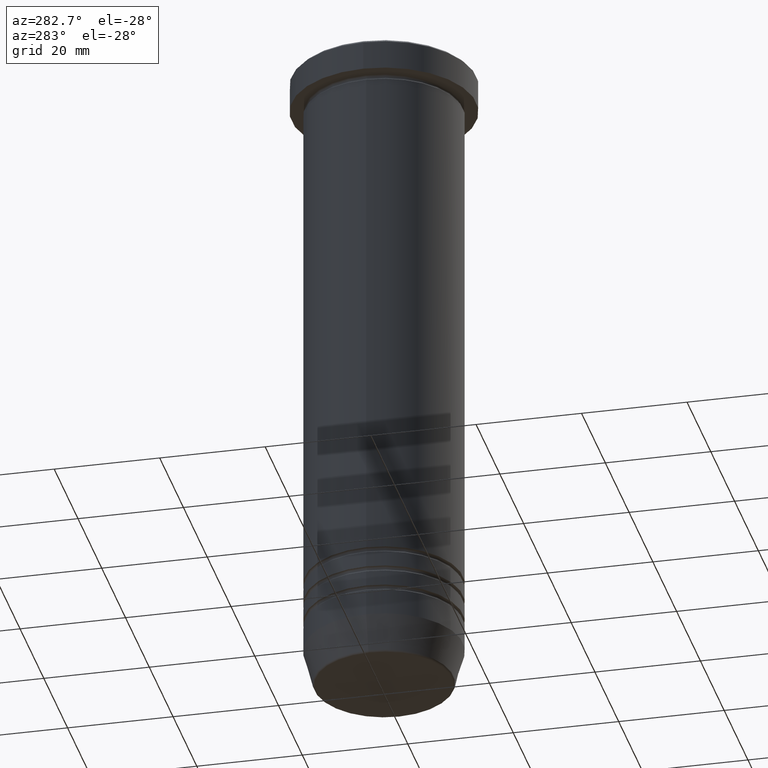
[diagram: clean part render]
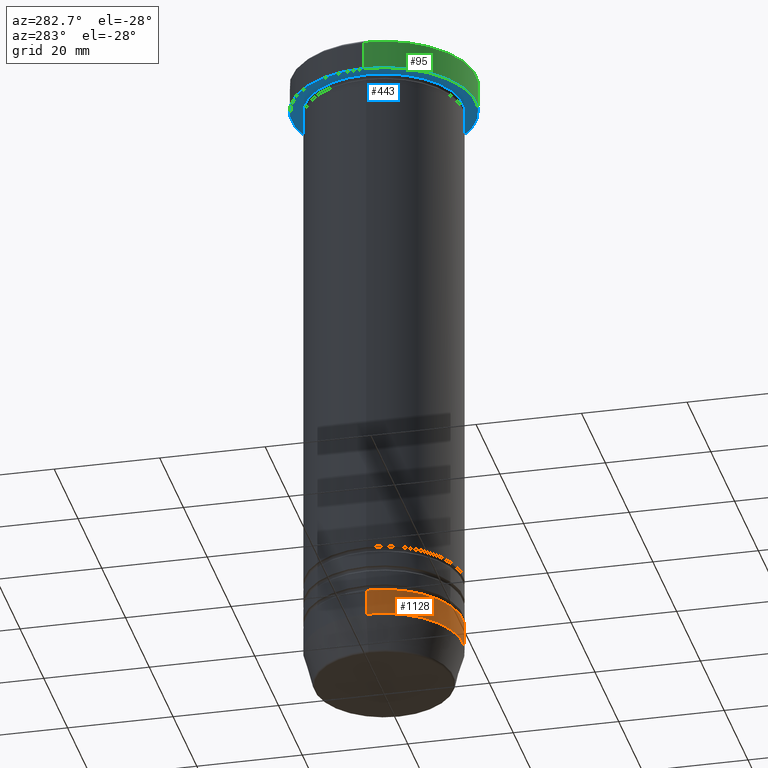
[diagram: same view with three faces highlighted in distinct colors, each labeled with its STEP entity id]
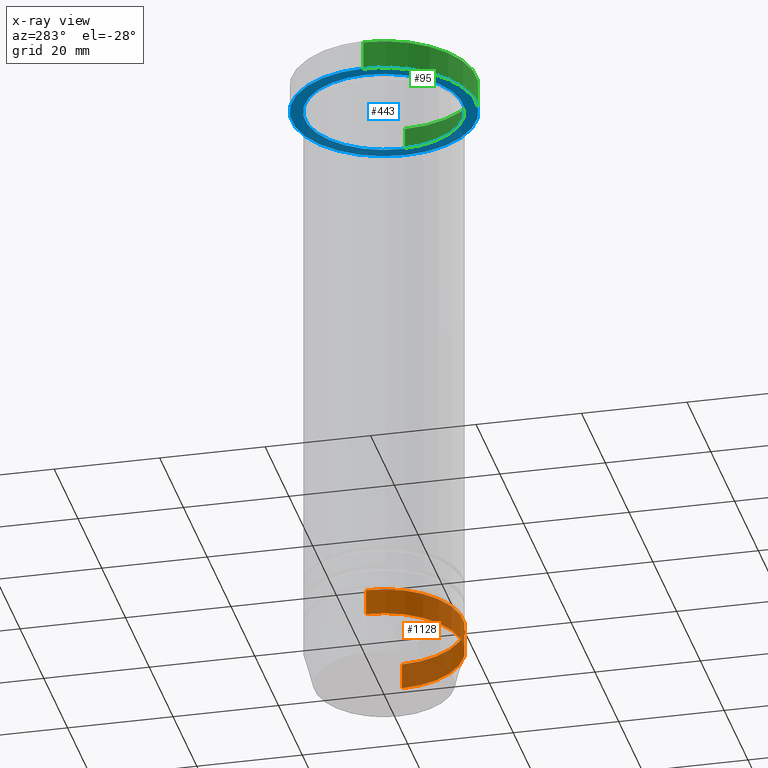
[diagram: x-ray of the same camera — body ghosted, the three highlighted faces saturated]
A machine part, auxiliary view with three faces highlighted in distinct colors.
The next image is the same camera in x-ray (body ghosted, the three faces saturated) — at least one of them is partly hidden behind the body in this view.
Their STEP definitions:

[orange] entity #1128 — the highlighted cylindrical surface (partial cylindrical patch) has radius 15 mm, axis along (-0, -0, 1).
#85 = AXIS2_PLACEMENT_3D ( 'NONE', #404, #417, #312 ) ;
#137 = CIRCLE ( 'NONE', #778, 14.99999999999999822 ) ;
#171 = ORIENTED_EDGE ( 'NONE', *, *, #966, .T. ) ;
#183 = LINE ( 'NONE', #361, #486 ) ;
#189 = CYLINDRICAL_SURFACE ( 'NONE', #637, 14.99999999999999822 ) ;
#203 = EDGE_CURVE ( 'NONE', #836, #1147, #137, .T. ) ;
#221 = DIRECTION ( 'NONE',  ( 1.000000000000000000, 0.000000000000000000, 0.000000000000000000 ) ) ;
#268 = LINE ( 'NONE', #428, #1019 ) ;
#312 = DIRECTION ( 'NONE',  ( 1.000000000000000000, 0.000000000000000000, 0.000000000000000000 ) ) ;
#335 = ORIENTED_EDGE ( 'NONE', *, *, #998, .F. ) ;
#341 = DIRECTION ( 'NONE',  ( -0.000000000000000000, -0.000000000000000000, 1.000000000000000000 ) ) ;
#349 = DIRECTION ( 'NONE',  ( 1.000000000000000000, 0.000000000000000000, 0.000000000000000000 ) ) ;
#361 = CARTESIAN_POINT ( 'NONE',  ( 14.99999999999999822, 0.000000000000000000, 0.000000000000000000 ) ) ;
#404 = CARTESIAN_POINT ( 'NONE',  ( 0.000000000000000000, 0.000000000000000000, -114.0000000000000000 ) ) ;
#417 = DIRECTION ( 'NONE',  ( -0.000000000000000000, -0.000000000000000000, 1.000000000000000000 ) ) ;
#428 = CARTESIAN_POINT ( 'NONE',  ( -14.99999999999999822, 1.836970198721029589E-15, 0.000000000000000000 ) ) ;
#445 = CARTESIAN_POINT ( 'NONE',  ( 0.000000000000000000, 0.000000000000000000, -119.0000000000000000 ) ) ;
#449 = VERTEX_POINT ( 'NONE', #919 ) ;
#486 = VECTOR ( 'NONE', #690, 1000.000000000000000 ) ;
#531 = DIRECTION ( 'NONE',  ( -0.000000000000000000, -0.000000000000000000, 1.000000000000000000 ) ) ;
#539 = FACE_OUTER_BOUND ( 'NONE', #692, .T. ) ;
#556 = CIRCLE ( 'NONE', #85, 14.99999999999999822 ) ;
#637 = AXIS2_PLACEMENT_3D ( 'NONE', #1007, #531, #221 ) ;
#650 = CARTESIAN_POINT ( 'NONE',  ( -14.99999999999999822, 1.836970198721029589E-15, -119.0000000000000000 ) ) ;
#676 = CARTESIAN_POINT ( 'NONE',  ( 14.99999999999999822, 0.000000000000000000, -114.0000000000000000 ) ) ;
#681 = ORIENTED_EDGE ( 'NONE', *, *, #796, .F. ) ;
#690 = DIRECTION ( 'NONE',  ( -0.000000000000000000, -0.000000000000000000, 1.000000000000000000 ) ) ;
#692 = EDGE_LOOP ( 'NONE', ( #335, #948, #171, #681 ) ) ;
#772 = DIRECTION ( 'NONE',  ( -0.000000000000000000, -0.000000000000000000, 1.000000000000000000 ) ) ;
#778 = AXIS2_PLACEMENT_3D ( 'NONE', #445, #341, #349 ) ;
#796 = EDGE_CURVE ( 'NONE', #449, #917, #556, .T. ) ;
#836 = VERTEX_POINT ( 'NONE', #650 ) ;
#895 = CARTESIAN_POINT ( 'NONE',  ( 14.99999999999999822, 0.000000000000000000, -119.0000000000000000 ) ) ;
#917 = VERTEX_POINT ( 'NONE', #676 ) ;
#919 = CARTESIAN_POINT ( 'NONE',  ( -14.99999999999999822, 1.836970198721029589E-15, -114.0000000000000000 ) ) ;
#948 = ORIENTED_EDGE ( 'NONE', *, *, #203, .T. ) ;
#966 = EDGE_CURVE ( 'NONE', #1147, #917, #183, .T. ) ;
#998 = EDGE_CURVE ( 'NONE', #836, #449, #268, .T. ) ;
#1007 = CARTESIAN_POINT ( 'NONE',  ( 0.000000000000000000, 0.000000000000000000, 0.000000000000000000 ) ) ;
#1019 = VECTOR ( 'NONE', #772, 1000.000000000000000 ) ;
#1128 = ADVANCED_FACE ( 'NONE', ( #539 ), #189, .T. ) ;
#1147 = VERTEX_POINT ( 'NONE', #895 ) ;

[blue] entity #443 — the highlighted planar face has unit normal (0, 0, -1).
#17 = ORIENTED_EDGE ( 'NONE', *, *, #841, .T. ) ;
#21 = AXIS2_PLACEMENT_3D ( 'NONE', #373, #1072, #1012 ) ;
#24 = CIRCLE ( 'NONE', #858, 15.00000000000000000 ) ;
#35 = CARTESIAN_POINT ( 'NONE',  ( 0.000000000000000000, 17.50000000000000000, -6.000000000000000000 ) ) ;
#71 = DIRECTION ( 'NONE',  ( 1.000000000000000000, 0.000000000000000000, 0.000000000000000000 ) ) ;
#81 = CARTESIAN_POINT ( 'NONE',  ( -17.50000000000000000, 2.143131898507868248E-15, -5.999999999999999112 ) ) ;
#158 = DIRECTION ( 'NONE',  ( -1.000000000000000000, 0.000000000000000000, 0.000000000000000000 ) ) ;
#162 = ORIENTED_EDGE ( 'NONE', *, *, #254, .F. ) ;
#182 = ORIENTED_EDGE ( 'NONE', *, *, #1145, .F. ) ;
#198 = VERTEX_POINT ( 'NONE', #81 ) ;
#254 = EDGE_CURVE ( 'NONE', #964, #198, #872, .T. ) ;
#264 = EDGE_LOOP ( 'NONE', ( #1064, #17 ) ) ;
#272 = AXIS2_PLACEMENT_3D ( 'NONE', #764, #1047, #158 ) ;
#279 = VERTEX_POINT ( 'NONE', #367 ) ;
#300 = DIRECTION ( 'NONE',  ( -1.000000000000000000, 0.000000000000000000, -0.000000000000000000 ) ) ;
#367 = CARTESIAN_POINT ( 'NONE',  ( -15.00000000000000000, 0.000000000000000000, -6.000000000000000000 ) ) ;
#373 = CARTESIAN_POINT ( 'NONE',  ( 0.000000000000000000, 0.000000000000000000, -5.999999999999999112 ) ) ;
#408 = DIRECTION ( 'NONE',  ( 0.000000000000000000, 0.000000000000000000, -1.000000000000000000 ) ) ;
#443 = ADVANCED_FACE ( 'NONE', ( #578, #570 ), #491, .T. ) ;
#455 = VERTEX_POINT ( 'NONE', #478 ) ;
#478 = CARTESIAN_POINT ( 'NONE',  ( 15.00000000000000000, 1.836970198721029589E-15, -6.000000000000000000 ) ) ;
#491 = PLANE ( 'NONE',  #571 ) ;
#500 = DIRECTION ( 'NONE',  ( -0.000000000000000000, -0.000000000000000000, 1.000000000000000000 ) ) ;
#501 = DIRECTION ( 'NONE',  ( -0.000000000000000000, -0.000000000000000000, 1.000000000000000000 ) ) ;
#507 = CIRCLE ( 'NONE', #272, 15.00000000000000000 ) ;
#511 = EDGE_CURVE ( 'NONE', #279, #455, #507, .T. ) ;
#570 = FACE_OUTER_BOUND ( 'NONE', #886, .T. ) ;
#571 = AXIS2_PLACEMENT_3D ( 'NONE', #35, #408, #300 ) ;
#578 = FACE_BOUND ( 'NONE', #264, .T. ) ;
#764 = CARTESIAN_POINT ( 'NONE',  ( 0.000000000000000000, 0.000000000000000000, -6.000000000000000000 ) ) ;
#841 = EDGE_CURVE ( 'NONE', #455, #279, #24, .T. ) ;
#844 = CARTESIAN_POINT ( 'NONE',  ( 0.000000000000000000, 0.000000000000000000, -6.000000000000000000 ) ) ;
#858 = AXIS2_PLACEMENT_3D ( 'NONE', #844, #500, #1018 ) ;
#870 = CARTESIAN_POINT ( 'NONE',  ( 17.50000000000000000, 0.000000000000000000, -5.999999999999999112 ) ) ;
#872 = CIRCLE ( 'NONE', #962, 17.50000000000000000 ) ;
#886 = EDGE_LOOP ( 'NONE', ( #162, #182 ) ) ;
#962 = AXIS2_PLACEMENT_3D ( 'NONE', #1060, #501, #71 ) ;
#964 = VERTEX_POINT ( 'NONE', #870 ) ;
#1012 = DIRECTION ( 'NONE',  ( 1.000000000000000000, 0.000000000000000000, 0.000000000000000000 ) ) ;
#1014 = CIRCLE ( 'NONE', #21, 17.50000000000000000 ) ;
#1018 = DIRECTION ( 'NONE',  ( -1.000000000000000000, 0.000000000000000000, 0.000000000000000000 ) ) ;
#1047 = DIRECTION ( 'NONE',  ( -0.000000000000000000, -0.000000000000000000, 1.000000000000000000 ) ) ;
#1060 = CARTESIAN_POINT ( 'NONE',  ( 0.000000000000000000, 0.000000000000000000, -5.999999999999999112 ) ) ;
#1064 = ORIENTED_EDGE ( 'NONE', *, *, #511, .T. ) ;
#1072 = DIRECTION ( 'NONE',  ( -0.000000000000000000, -0.000000000000000000, 1.000000000000000000 ) ) ;
#1145 = EDGE_CURVE ( 'NONE', #198, #964, #1014, .T. ) ;

[green] entity #95 — the highlighted cylindrical surface (partial cylindrical patch) has radius 17.5 mm, axis along (-0, -0, 1).
#8 = VECTOR ( 'NONE', #413, 1000.000000000000000 ) ;
#21 = AXIS2_PLACEMENT_3D ( 'NONE', #373, #1072, #1012 ) ;
#57 = CARTESIAN_POINT ( 'NONE',  ( -17.50000000000000000, 2.143131898507868248E-15, 0.000000000000000000 ) ) ;
#81 = CARTESIAN_POINT ( 'NONE',  ( -17.50000000000000000, 2.143131898507868248E-15, -5.999999999999999112 ) ) ;
#95 = ADVANCED_FACE ( 'NONE', ( #742 ), #1102, .T. ) ;
#102 = EDGE_CURVE ( 'NONE', #964, #267, #159, .T. ) ;
#108 = ORIENTED_EDGE ( 'NONE', *, *, #646, .T. ) ;
#159 = LINE ( 'NONE', #579, #522 ) ;
#198 = VERTEX_POINT ( 'NONE', #81 ) ;
#209 = CARTESIAN_POINT ( 'NONE',  ( 0.000000000000000000, 0.000000000000000000, -0.5000000000000073275 ) ) ;
#263 = ORIENTED_EDGE ( 'NONE', *, *, #918, .F. ) ;
#267 = VERTEX_POINT ( 'NONE', #628 ) ;
#296 = ORIENTED_EDGE ( 'NONE', *, *, #102, .T. ) ;
#315 = CARTESIAN_POINT ( 'NONE',  ( 0.000000000000000000, 0.000000000000000000, 0.000000000000000000 ) ) ;
#373 = CARTESIAN_POINT ( 'NONE',  ( 0.000000000000000000, 0.000000000000000000, -5.999999999999999112 ) ) ;
#399 = CARTESIAN_POINT ( 'NONE',  ( -17.50000000000000000, 2.143131898507868248E-15, -0.5000000000000073275 ) ) ;
#413 = DIRECTION ( 'NONE',  ( -0.000000000000000000, -0.000000000000000000, 1.000000000000000000 ) ) ;
#522 = VECTOR ( 'NONE', #940, 1000.000000000000000 ) ;
#549 = DIRECTION ( 'NONE',  ( 0.000000000000000000, 0.000000000000000000, -1.000000000000000000 ) ) ;
#579 = CARTESIAN_POINT ( 'NONE',  ( 17.50000000000000000, 0.000000000000000000, 0.000000000000000000 ) ) ;
#617 = DIRECTION ( 'NONE',  ( 1.000000000000000000, 0.000000000000000000, 0.000000000000000000 ) ) ;
#628 = CARTESIAN_POINT ( 'NONE',  ( 17.50000000000000000, 0.000000000000000000, -0.5000000000000073275 ) ) ;
#638 = CIRCLE ( 'NONE', #946, 17.50000000000000000 ) ;
#646 = EDGE_CURVE ( 'NONE', #267, #739, #638, .T. ) ;
#739 = VERTEX_POINT ( 'NONE', #399 ) ;
#742 = FACE_OUTER_BOUND ( 'NONE', #1085, .T. ) ;
#780 = ORIENTED_EDGE ( 'NONE', *, *, #1145, .T. ) ;
#829 = AXIS2_PLACEMENT_3D ( 'NONE', #315, #928, #1011 ) ;
#870 = CARTESIAN_POINT ( 'NONE',  ( 17.50000000000000000, 0.000000000000000000, -5.999999999999999112 ) ) ;
#918 = EDGE_CURVE ( 'NONE', #198, #739, #1039, .T. ) ;
#928 = DIRECTION ( 'NONE',  ( -0.000000000000000000, -0.000000000000000000, 1.000000000000000000 ) ) ;
#940 = DIRECTION ( 'NONE',  ( -0.000000000000000000, -0.000000000000000000, 1.000000000000000000 ) ) ;
#946 = AXIS2_PLACEMENT_3D ( 'NONE', #209, #549, #617 ) ;
#964 = VERTEX_POINT ( 'NONE', #870 ) ;
#1011 = DIRECTION ( 'NONE',  ( 1.000000000000000000, 0.000000000000000000, 0.000000000000000000 ) ) ;
#1012 = DIRECTION ( 'NONE',  ( 1.000000000000000000, 0.000000000000000000, 0.000000000000000000 ) ) ;
#1014 = CIRCLE ( 'NONE', #21, 17.50000000000000000 ) ;
#1039 = LINE ( 'NONE', #57, #8 ) ;
#1072 = DIRECTION ( 'NONE',  ( -0.000000000000000000, -0.000000000000000000, 1.000000000000000000 ) ) ;
#1085 = EDGE_LOOP ( 'NONE', ( #263, #780, #296, #108 ) ) ;
#1102 = CYLINDRICAL_SURFACE ( 'NONE', #829, 17.50000000000000000 ) ;
#1145 = EDGE_CURVE ( 'NONE', #198, #964, #1014, .T. ) ;